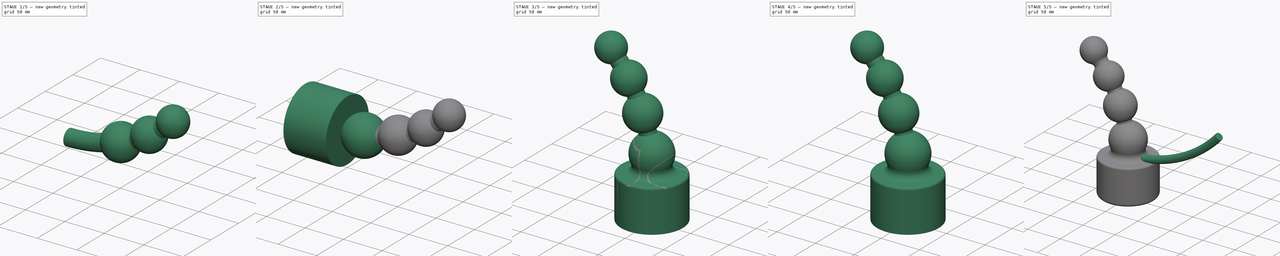
[diagram: build sequence overview — one tinted view per stage of 5, left to right]
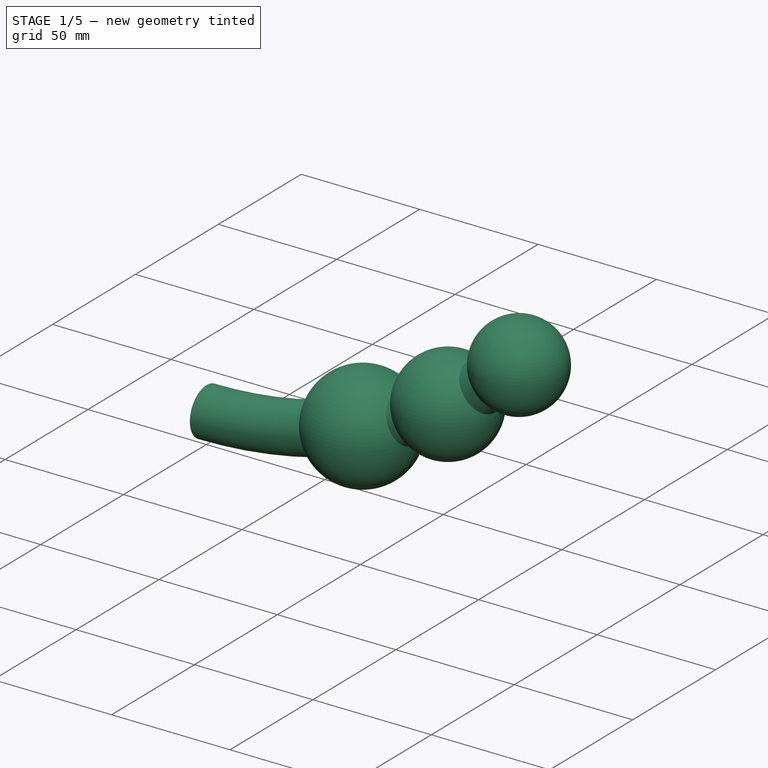
[diagram: stage 1 of 5 — iso view after this stage's code; geometry added in this stage tinted green]
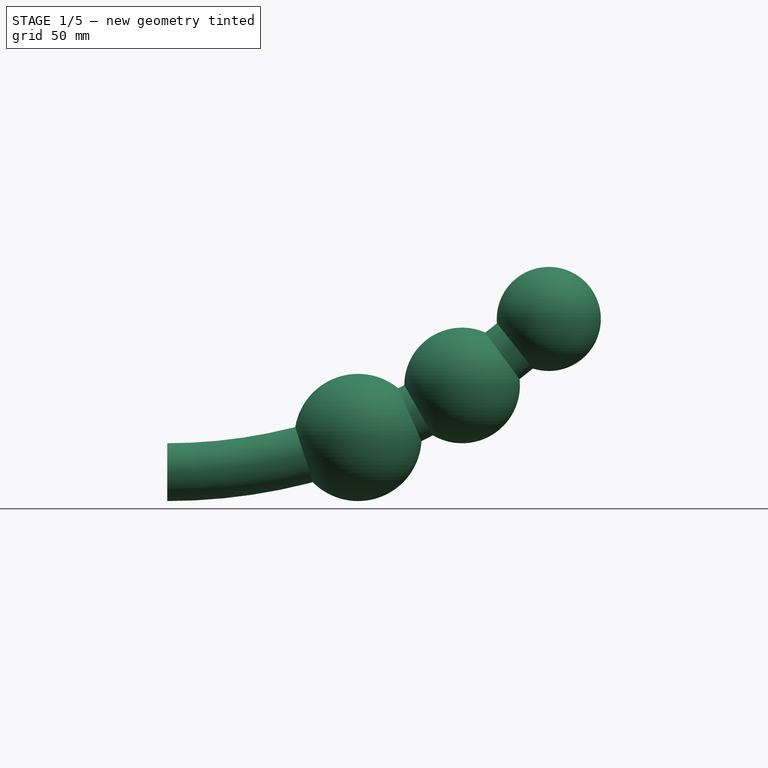
[diagram: stage 1 of 5 — front view after this stage's code; geometry added in this stage tinted green]
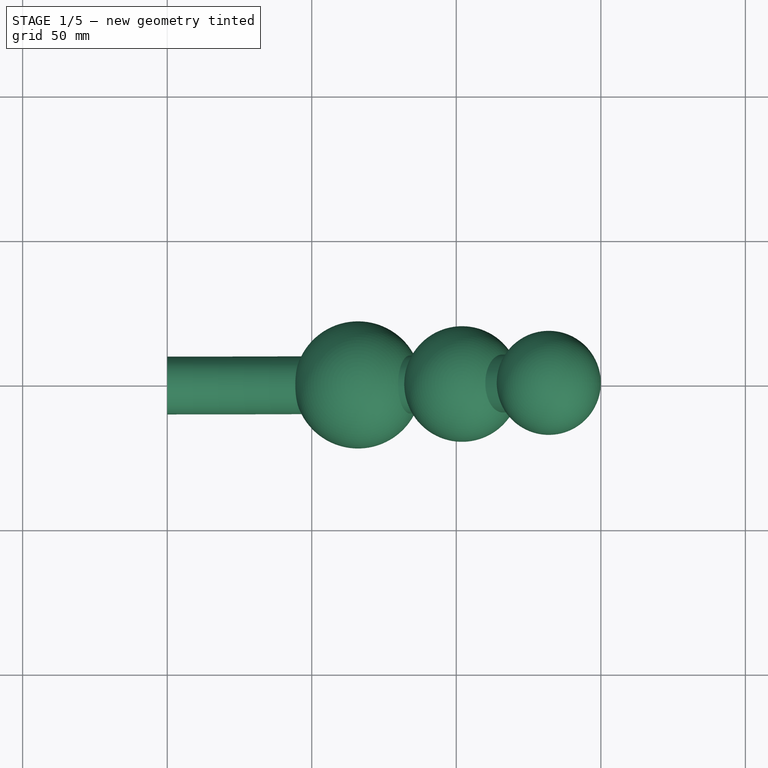
[diagram: stage 1 of 5 — top view after this stage's code; geometry added in this stage tinted green]
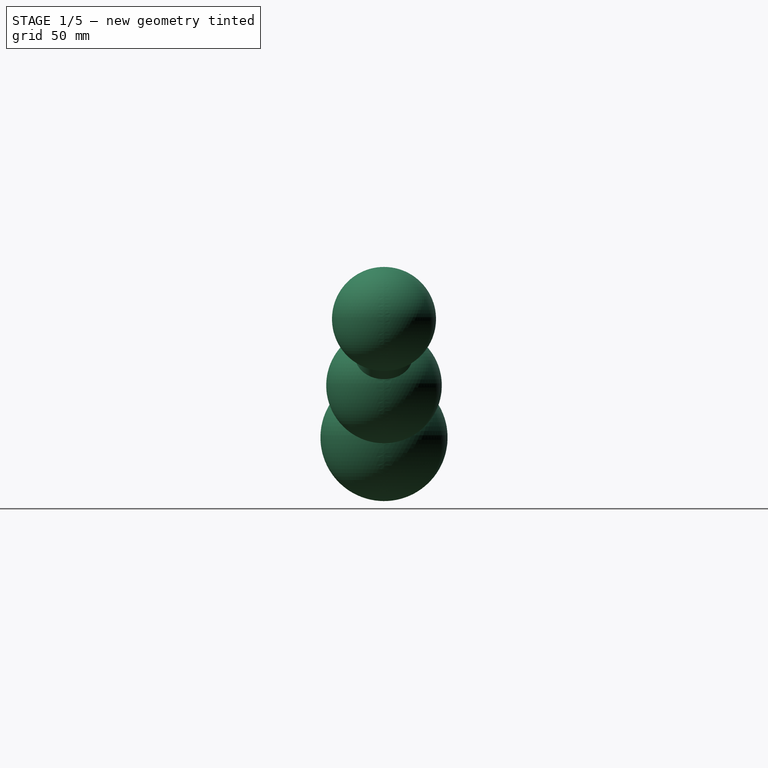
[diagram: stage 1 of 5 — right view after this stage's code; geometry added in this stage tinted green]
FCSTD DOCUMENT  (FreeCAD 0.14R3691 (Git))
Label: Shaft-1_1
License: CC-BY 3.0
LicenseURL: http://creativecommons.org/licenses/by/3.0/
objects: PartDesign::Fillet×9, Sketcher::SketchObject×4, Part::Sphere×4, Part::MultiFuse×3, Part::Sweep×2, Part::Extrusion×1
note: 23 computed .brp shape members not serialized (recipe doc carries the construction recipe); baked Part::Feature solids carry a one-line shape summary decoded from their .brp

FEATURE [Part::Sphere] Sphere001  label="Sphere 1"
  Angle1 = -90
  Angle2 = 90
  Angle3 = 360
  Placement = pos=(102,0,30) rot=(0,0,1;0rad)
  Radius = 20
FEATURE [Part::Sphere] Sphere002  label="Sphere 2"
  Angle1 = -90
  Angle2 = 90
  Angle3 = 360
  Placement = pos=(66,0,12) rot=(0,0,1;0rad)
  Radius = 22
FEATURE [Part::Sphere] Sphere003  label="Sphere 3"
  Angle1 = -90
  Angle2 = 90
  Angle3 = 360
  Placement = pos=(132,0,53) rot=(0,0,1;0rad)
  Radius = 18
FEATURE [Sketcher::SketchObject] Sketch008
  Placement = pos=(0,0,0) rot=(-0.57735,0.57735,0.57735;4.18879rad)
  sketch-geometry (1):
    g0: Circle CenterX=0 CenterY=0 CenterZ=0 NormalX=0 NormalY=0 NormalZ=1 Radius=10
  constraints (2):
    c: Coincident(g0,g-1)
    c: Radius(g0) = 10
FEATURE [Part::Sweep] Sweep001
  Frenet = false
  Sections = -> [Sketch008]
  Solid = true
  Spine = -> Sketch [Edge1]
  Transition = 1
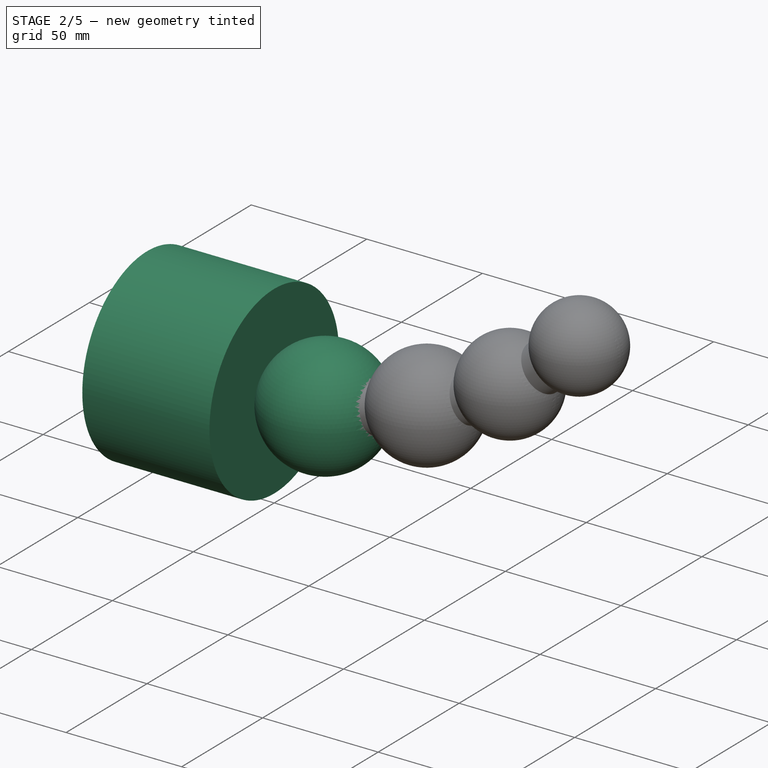
[diagram: stage 2 of 5 — iso view after this stage's code; geometry added in this stage tinted green]
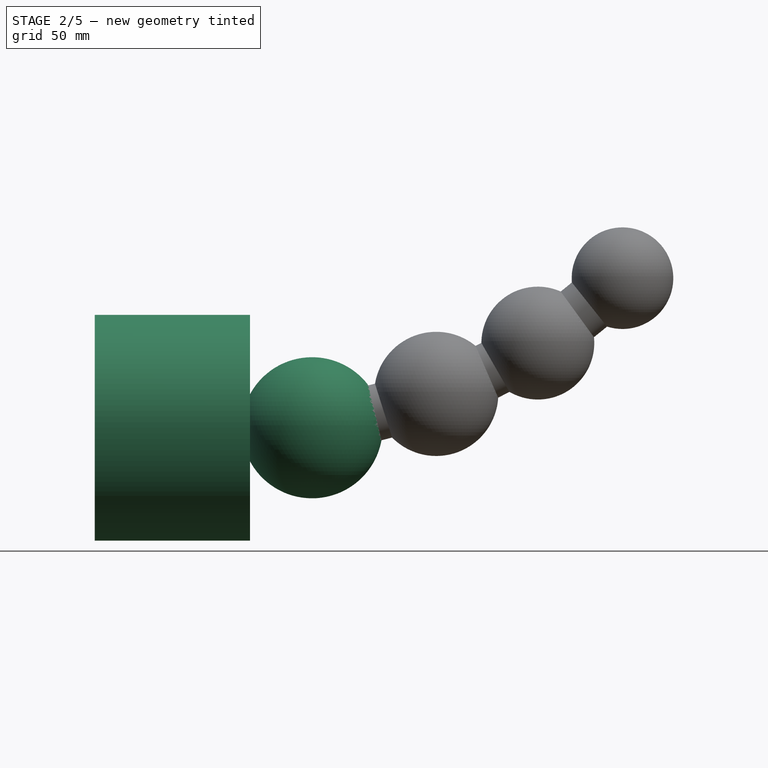
[diagram: stage 2 of 5 — front view after this stage's code; geometry added in this stage tinted green]
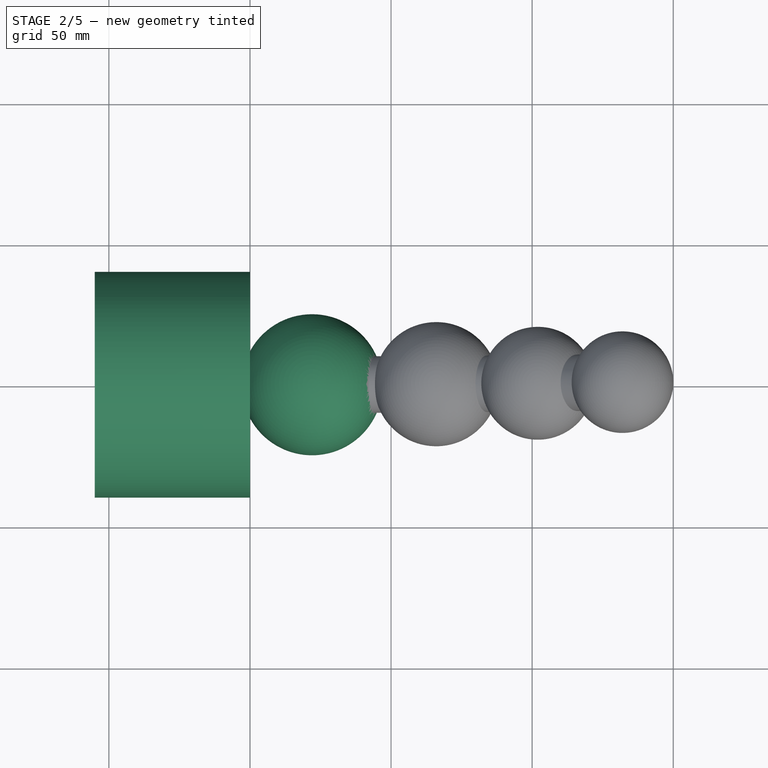
[diagram: stage 2 of 5 — top view after this stage's code; geometry added in this stage tinted green]
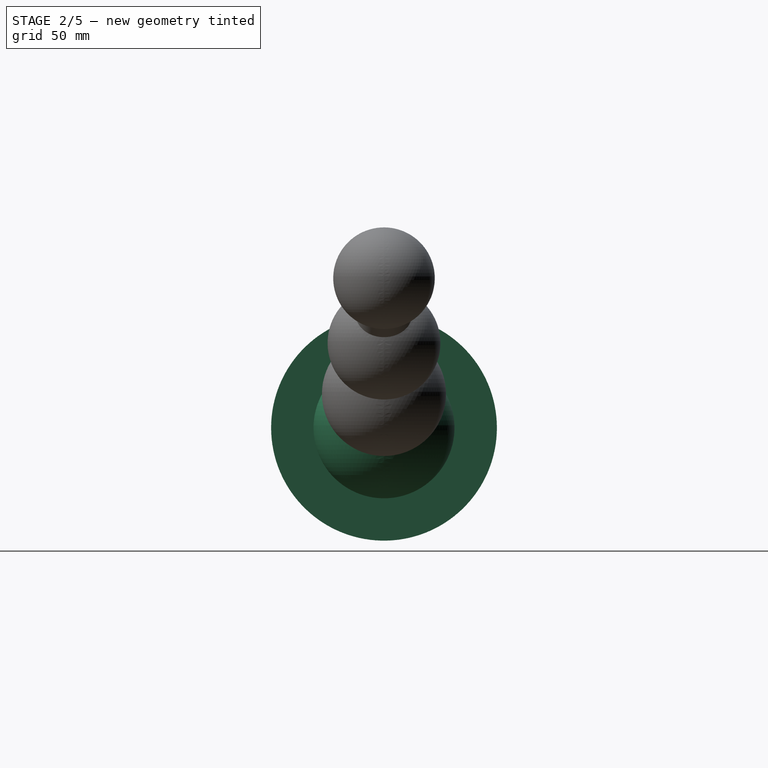
[diagram: stage 2 of 5 — right view after this stage's code; geometry added in this stage tinted green]
FEATURE [Part::Sphere] Sphere  label="Sphere 0"
  Angle1 = -90
  Angle2 = 90
  Angle3 = 360
  Placement = pos=(22,0,0) rot=(0,0,1;0rad)
  Radius = 25
FEATURE [Part::MultiFuse] Fusion
  Shapes = -> [Sphere,Sphere002,Sphere001,Sphere003]
FEATURE [Sketcher::SketchObject] Sketch007
  Placement = pos=(0,0,0) rot=(-0.57735,0.57735,0.57735;4.18879rad)
  sketch-geometry (1):
    g0: Circle CenterX=0 CenterY=0 CenterZ=0 NormalX=0 NormalY=0 NormalZ=1 Radius=40
  constraints (2):
    c: Coincident(g0,g-1)
    c: Radius(g0) = 40
FEATURE [Part::Extrusion] Extrude
  Base = -> Sketch007
  Dir = (-55,0,0)
  Solid = true
FEATURE [Part::MultiFuse] Fusion001
  Shapes = -> [Fusion,Sweep001]
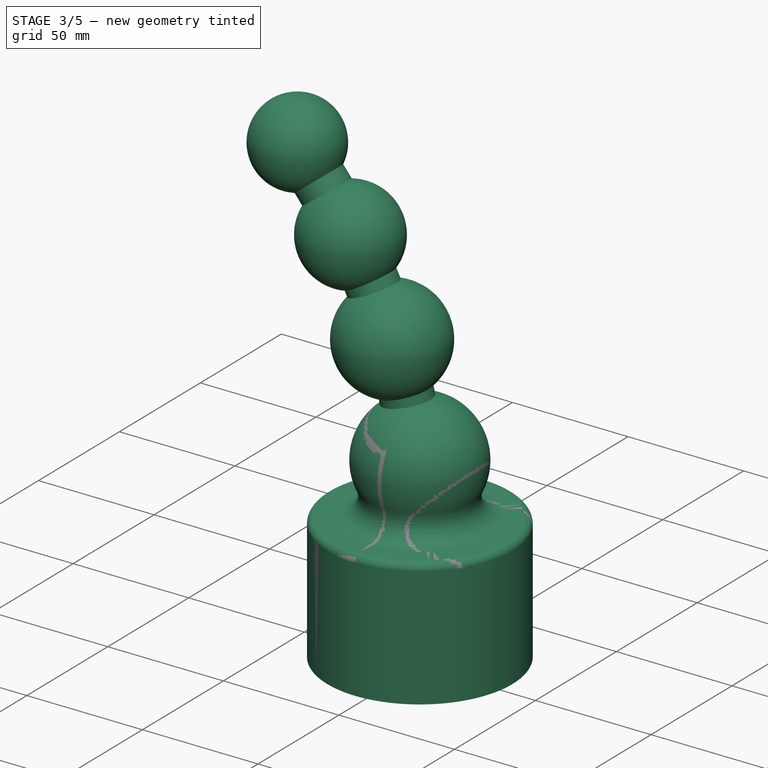
[diagram: stage 3 of 5 — iso view after this stage's code; geometry added in this stage tinted green]
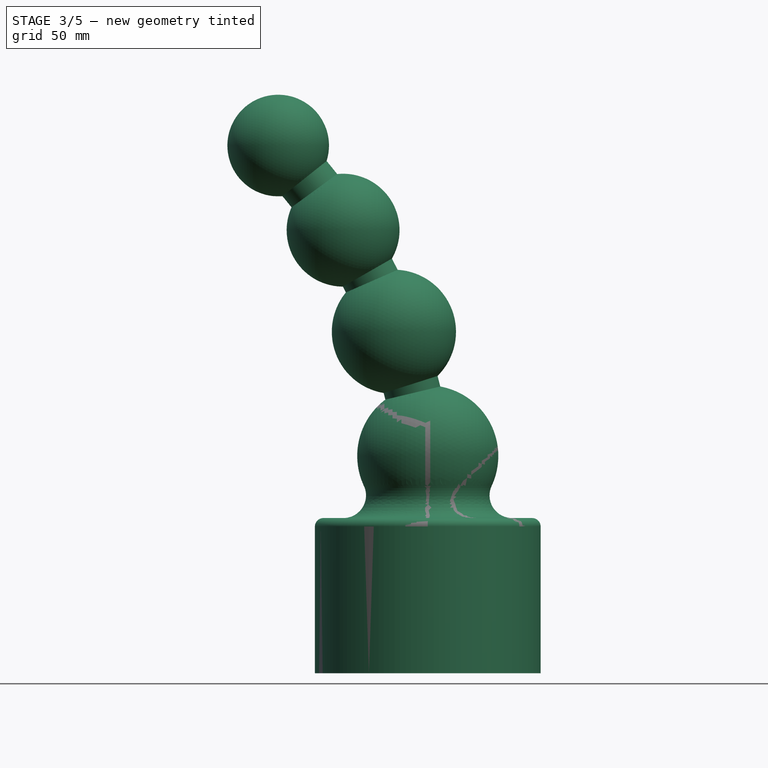
[diagram: stage 3 of 5 — front view after this stage's code; geometry added in this stage tinted green]
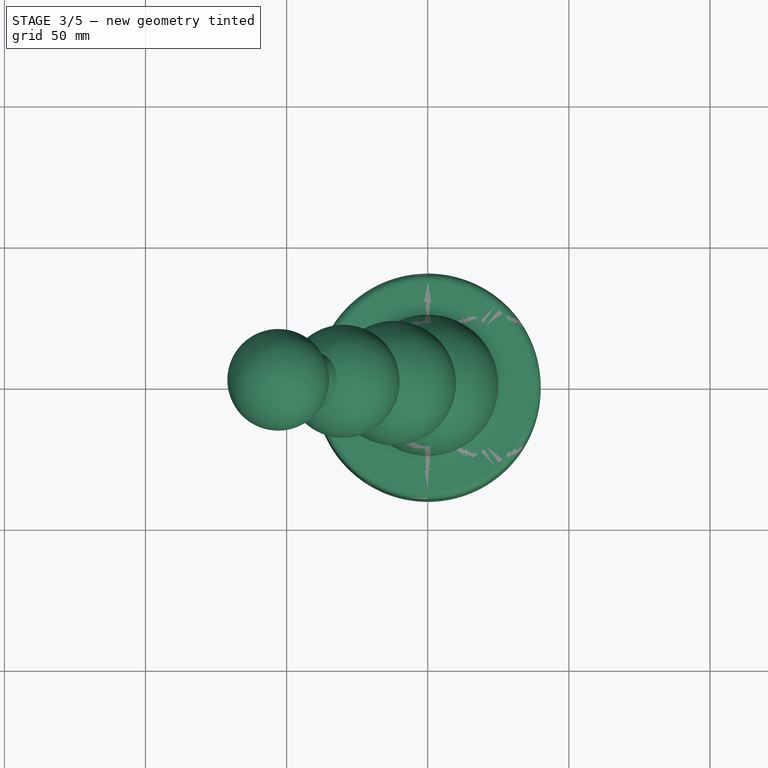
[diagram: stage 3 of 5 — top view after this stage's code; geometry added in this stage tinted green]
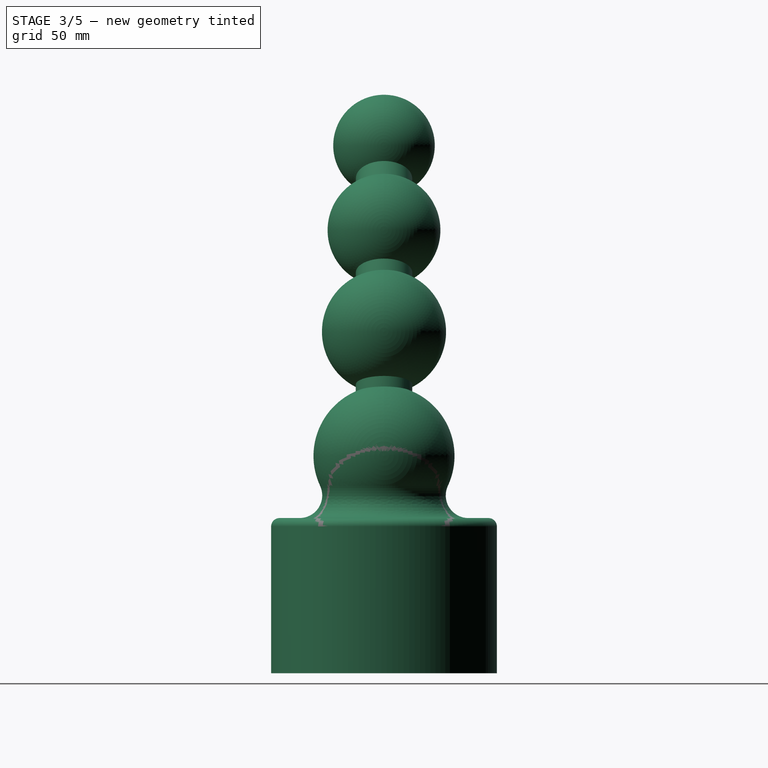
[diagram: stage 3 of 5 — right view after this stage's code; geometry added in this stage tinted green]
FEATURE [Part::MultiFuse] Fusion002
  Placement = pos=(0,0,0) rot=(0,-1,0;1.5708rad)
  Shapes = -> [Extrude,Fusion001]
FEATURE [PartDesign::Fillet] Fillet
  Base = -> Fusion002 [Edge4]
  Placement = pos=(0,0,0) rot=(0,-1,0;1.5708rad)
  Radius = 8
FEATURE [PartDesign::Fillet] Fillet001
  Base = -> Fillet [Edge2]
  Placement = pos=(0,0,0) rot=(0,-1,0;1.5708rad)
  Radius = 3
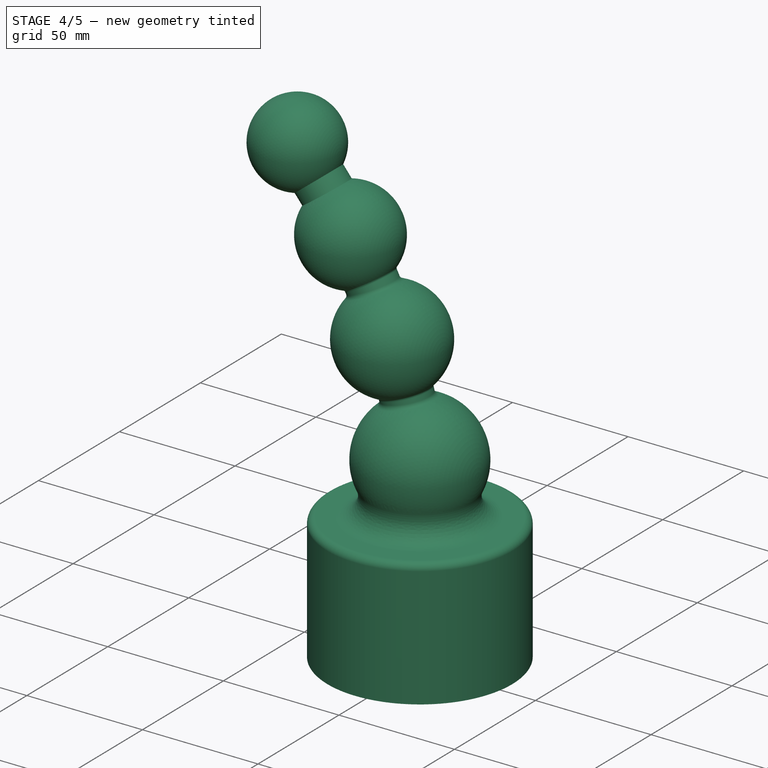
[diagram: stage 4 of 5 — iso view after this stage's code; geometry added in this stage tinted green]
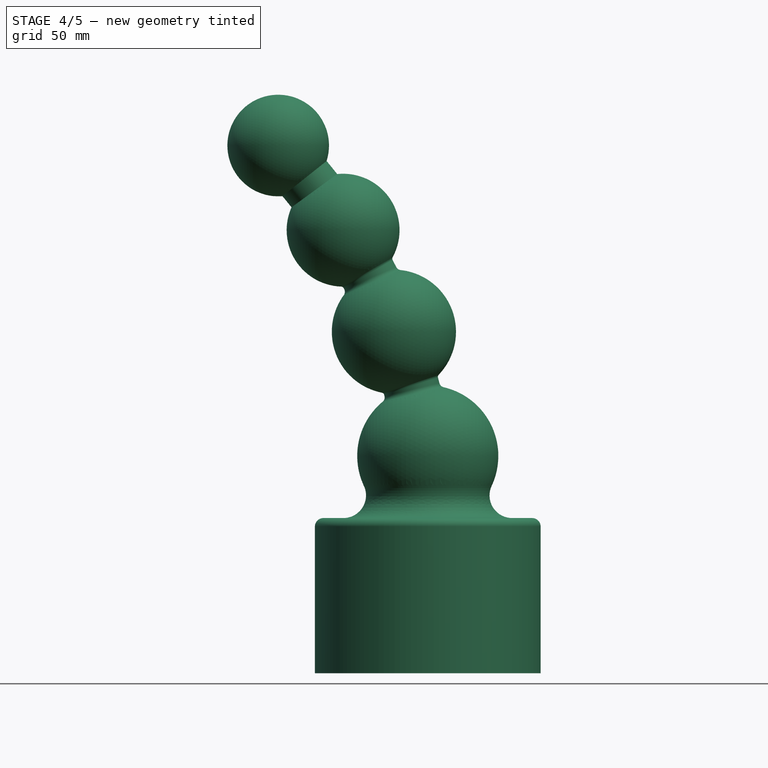
[diagram: stage 4 of 5 — front view after this stage's code; geometry added in this stage tinted green]
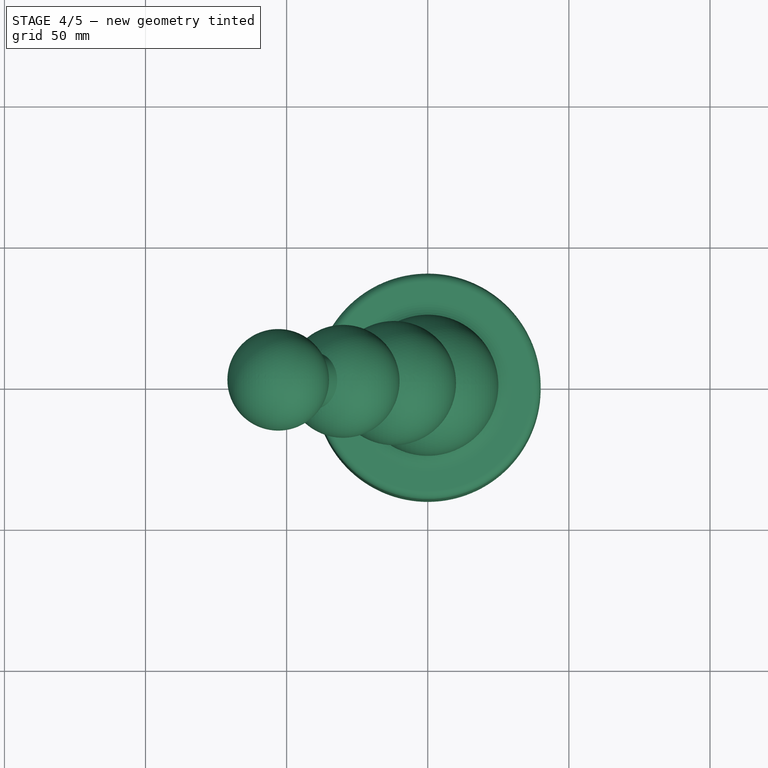
[diagram: stage 4 of 5 — top view after this stage's code; geometry added in this stage tinted green]
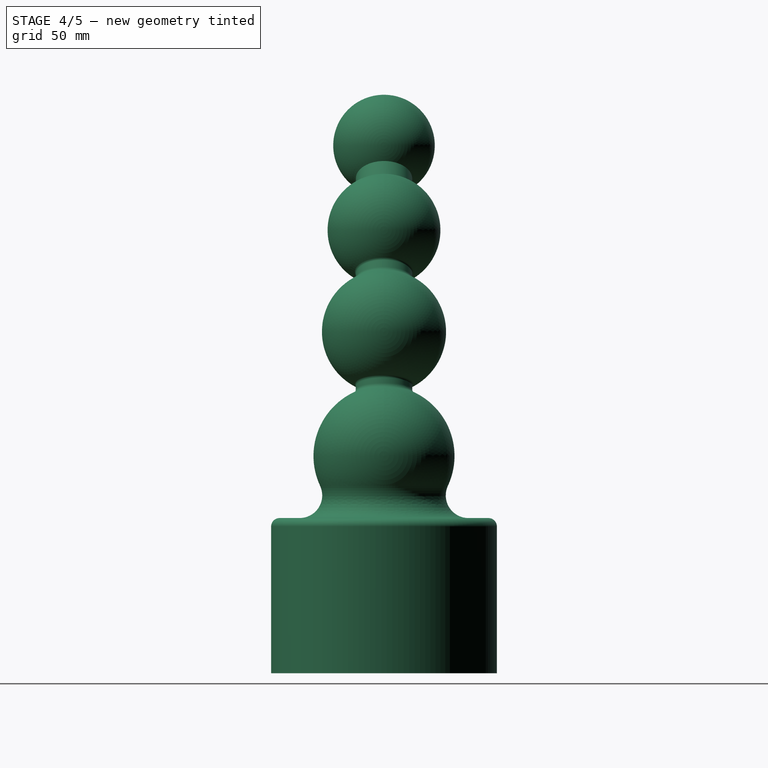
[diagram: stage 4 of 5 — right view after this stage's code; geometry added in this stage tinted green]
FEATURE [PartDesign::Fillet] Fillet002
  Base = -> Fillet001 [Edge15]
  Placement = pos=(0,0,0) rot=(0,-1,0;1.5708rad)
  Radius = 2
FEATURE [PartDesign::Fillet] Fillet003
  Base = -> Fillet002 [Edge18]
  Placement = pos=(0,0,0) rot=(0,-1,0;1.5708rad)
  Radius = 1
FEATURE [PartDesign::Fillet] Fillet004
  Base = -> Fillet003 [Edge18]
  Placement = pos=(0,0,0) rot=(0,-1,0;1.5708rad)
  Radius = 2
FEATURE [PartDesign::Fillet] Fillet005
  Base = -> Fillet004 [Edge18]
  Placement = pos=(0,0,0) rot=(0,-1,0;1.5708rad)
  Radius = 1
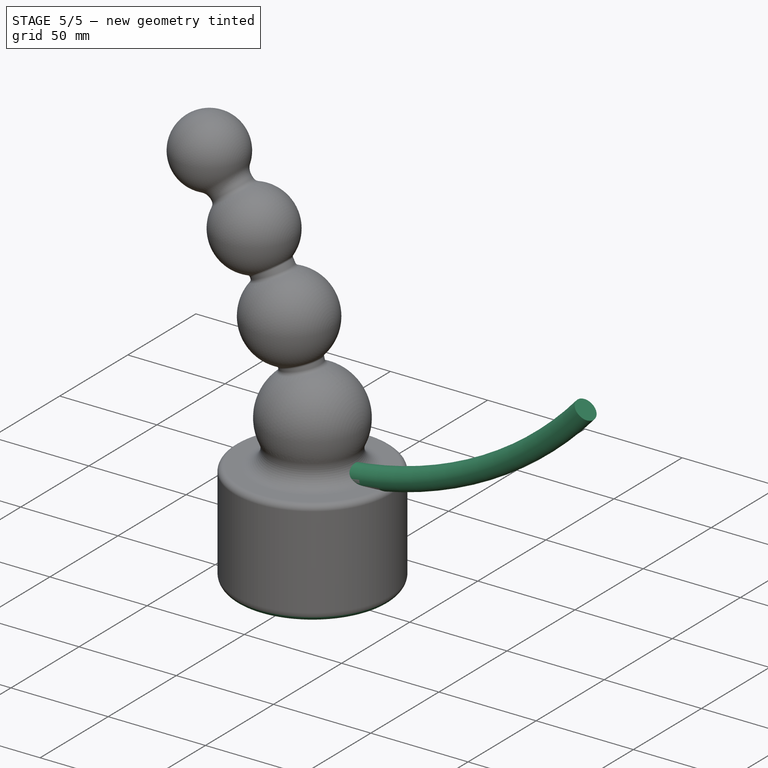
[diagram: stage 5 of 5 — iso view after this stage's code; geometry added in this stage tinted green]
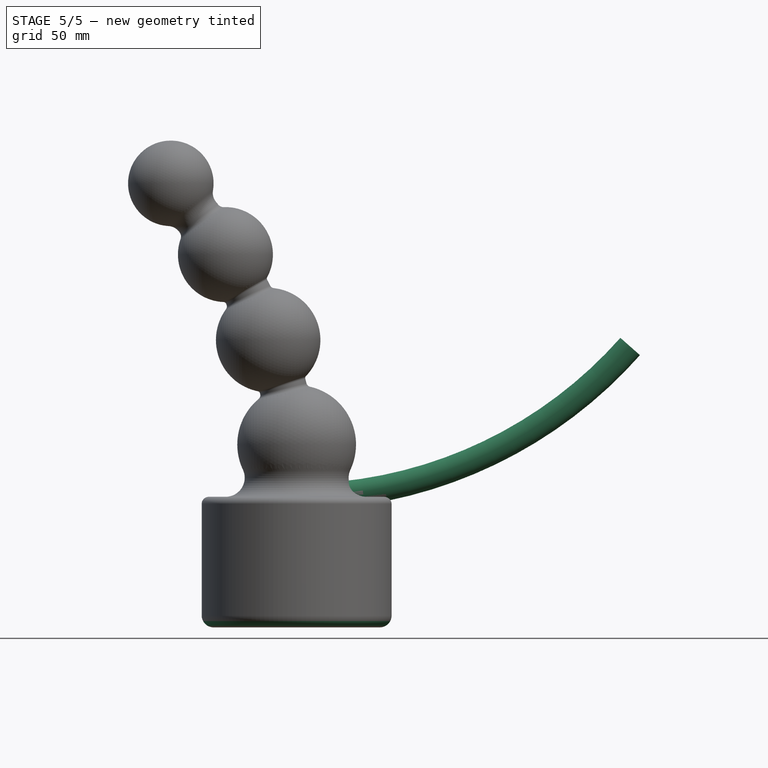
[diagram: stage 5 of 5 — front view after this stage's code; geometry added in this stage tinted green]
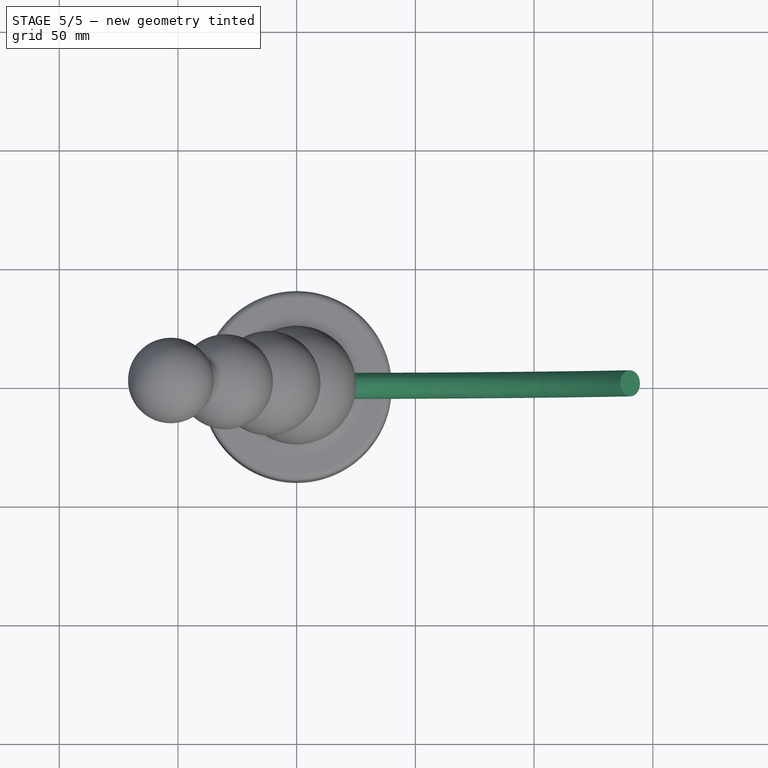
[diagram: stage 5 of 5 — top view after this stage's code; geometry added in this stage tinted green]
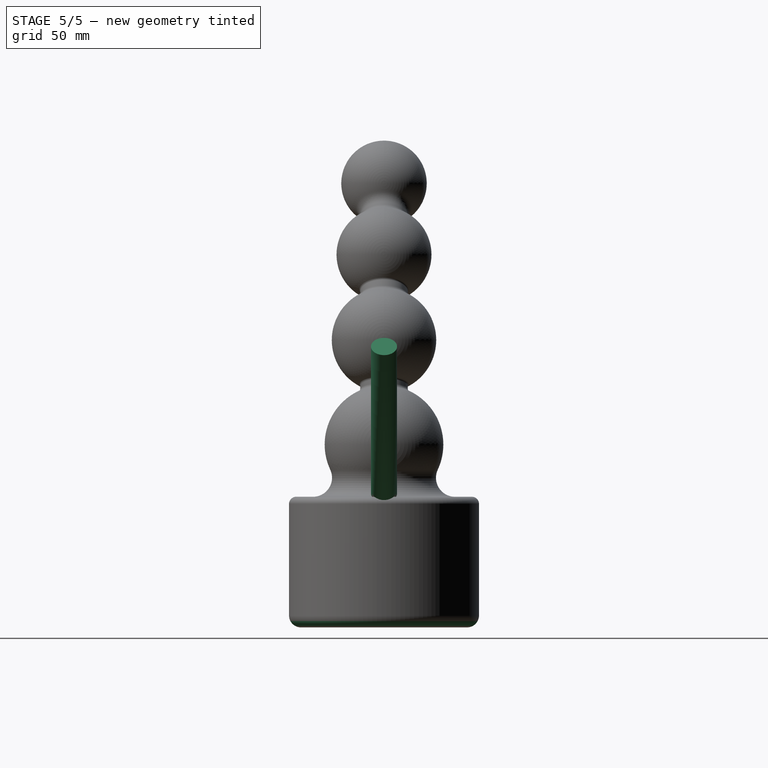
[diagram: stage 5 of 5 — right view after this stage's code; geometry added in this stage tinted green]
FEATURE [Sketcher::SketchObject] Sketch  label="Curve"
  Placement = pos=(0,0,0) rot=(1,0,0;1.5708rad)
  sketch-geometry (1):
    g0: ArcOfCircle CenterX=0 CenterY=187.481 CenterZ=0 NormalX=0 NormalY=0 NormalZ=1 Radius=187.481 StartAngle=4.71239 EndAngle=5.55922
  constraints (4):
    c: Coincident(g0,g-1)
    c: DistanceX(g0) = 140.458
    c: Radius(g0) = 187.481
    c: PointOnObject(g0,g-2)
FEATURE [Sketcher::SketchObject] Sketch006
  Placement = pos=(0,0,0) rot=(0.57735,-0.57735,-0.57735;2.0944rad)
  sketch-geometry (1):
    g0: Circle CenterX=0 CenterY=0 CenterZ=0 NormalX=0 NormalY=0 NormalZ=1 Radius=5.5
  constraints (2):
    c: Coincident(g0,g-1)
    c: Radius(g0) = 5.5
FEATURE [Part::Sweep] Sweep
  Frenet = false
  Sections = -> [Sketch006]
  Solid = true
  Spine = -> Sketch [Edge1]
  Transition = 1
FEATURE [PartDesign::Fillet] Fillet006
  Base = -> Fillet005 [Edge18]
  Placement = pos=(0,0,0) rot=(0,-1,0;1.5708rad)
  Radius = 3
FEATURE [PartDesign::Fillet] Fillet007
  Base = -> Fillet006 [Edge18]
  Placement = pos=(0,0,0) rot=(0,-1,0;1.5708rad)
  Radius = 6
FEATURE [PartDesign::Fillet] Fillet008
  Base = -> Fillet007 [Edge62]
  Placement = pos=(0,0,0) rot=(0,-1,0;1.5708rad)
  Radius = 5
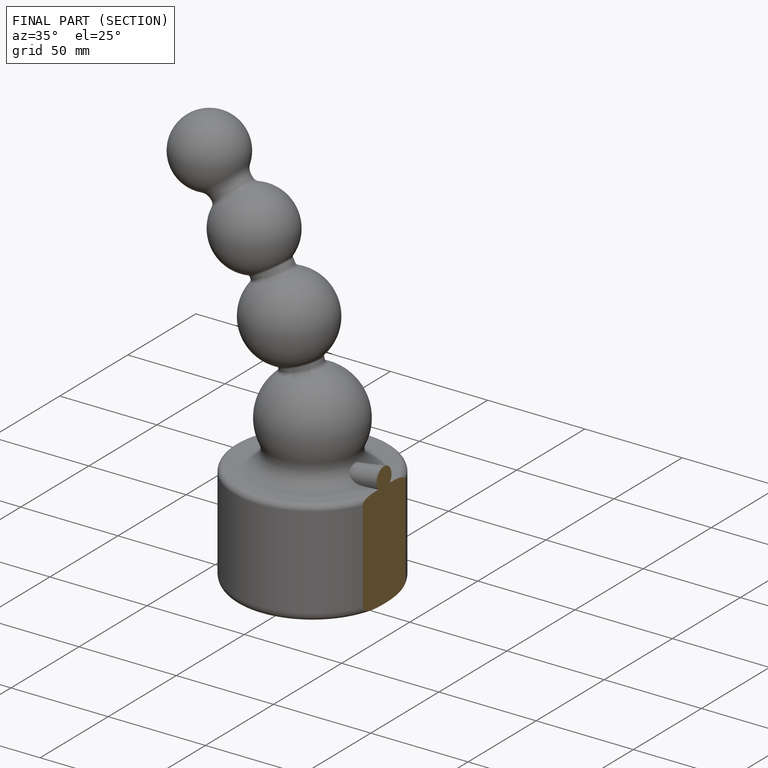
[diagram: finished part — half-section view (interior)]
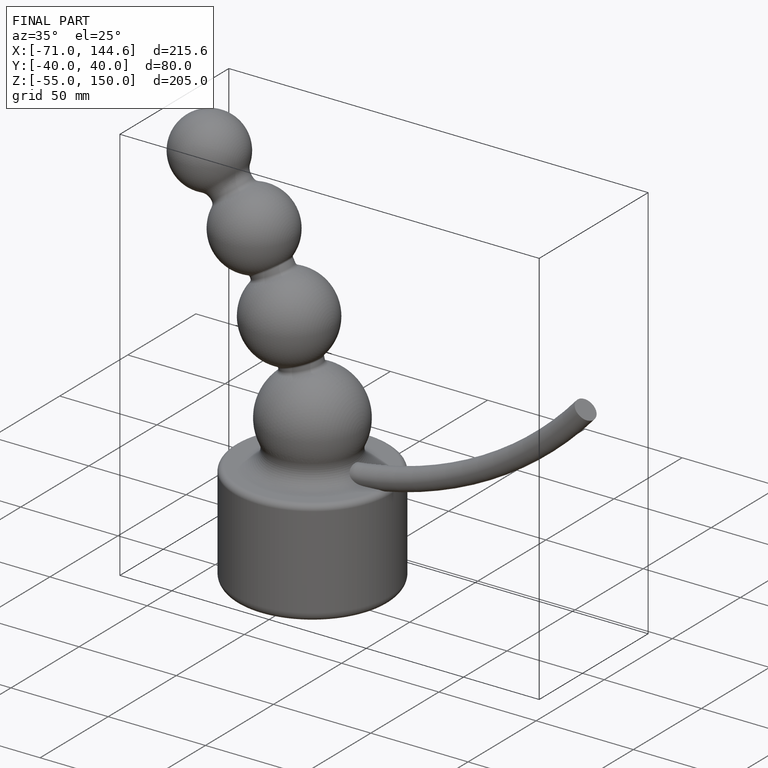
[diagram: finished part — iso view with bounding-box wireframe]
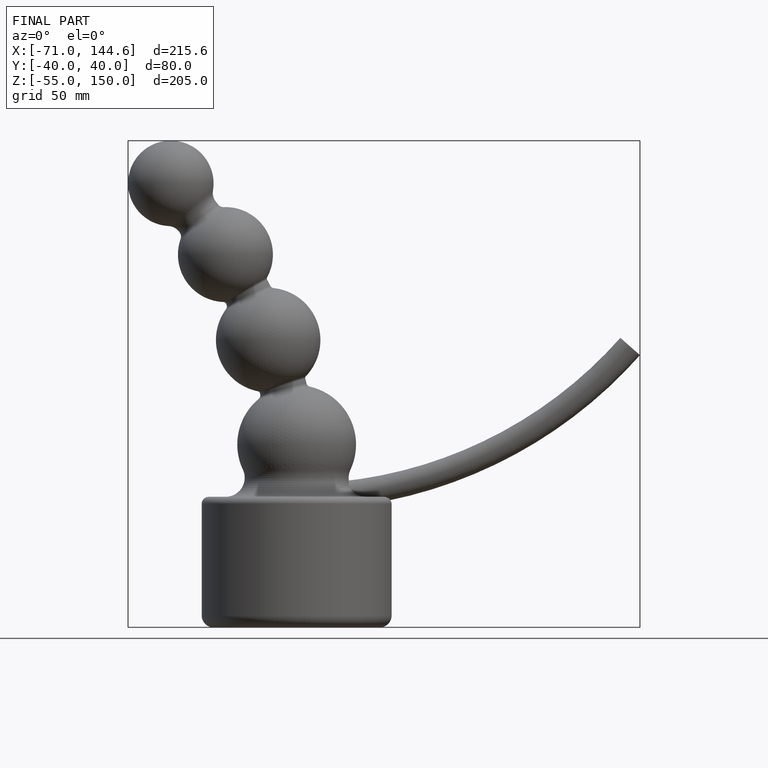
[diagram: finished part — front view with bounding-box wireframe]
